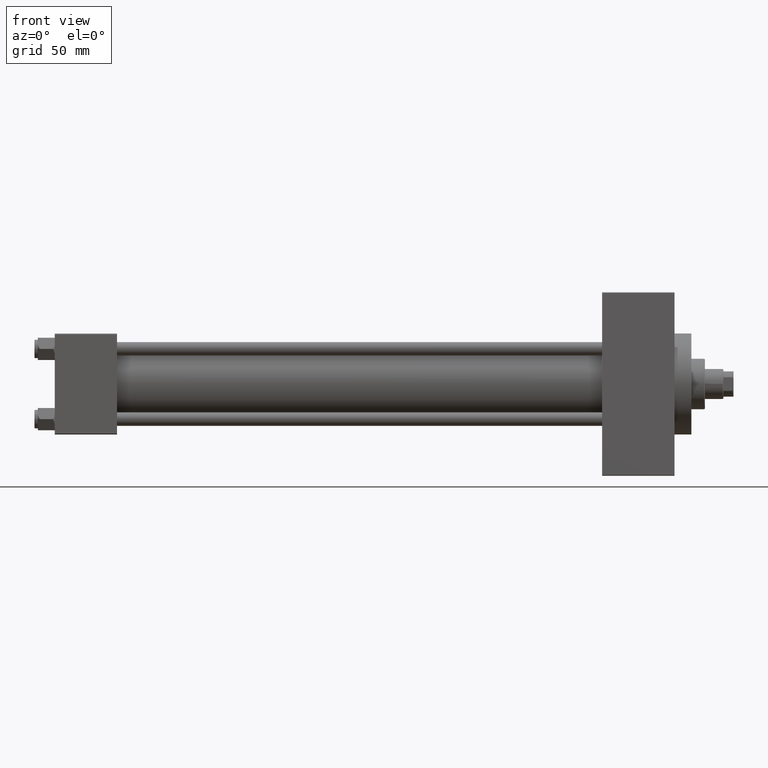
[diagram: clean part render]
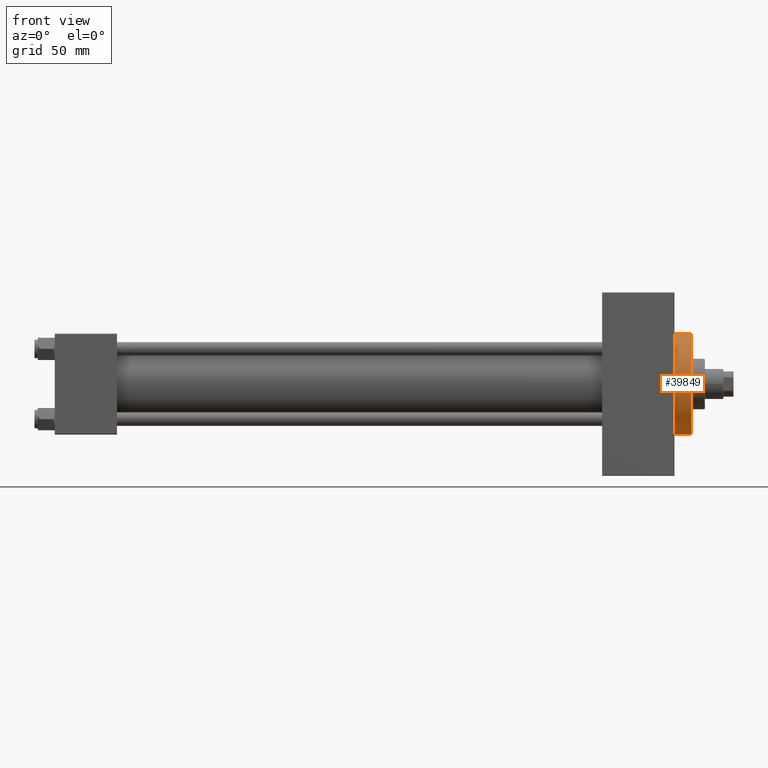
[diagram: same view with one face highlighted and labeled with its STEP entity id]
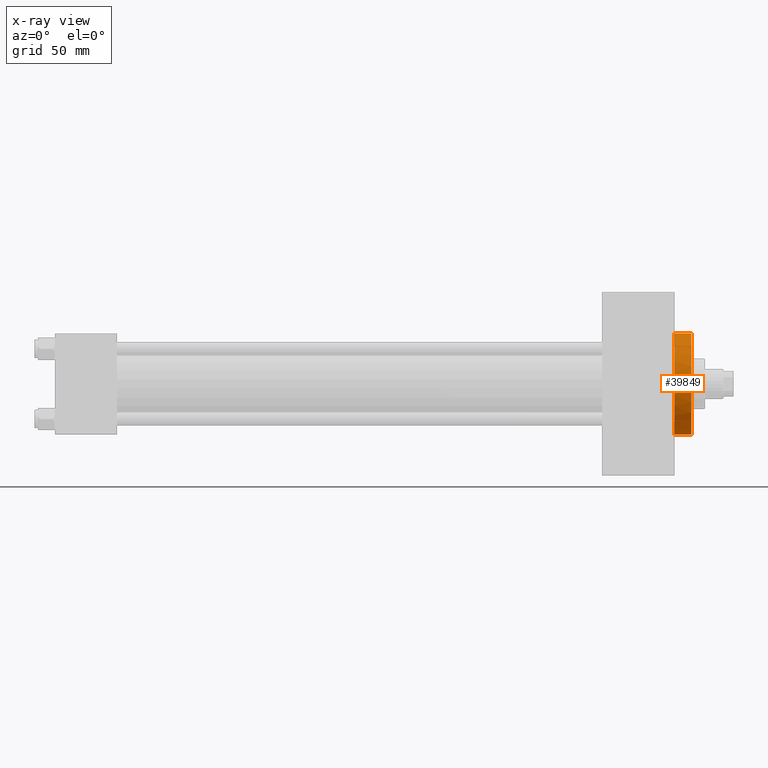
[diagram: x-ray of the same camera — body ghosted, the highlighted face saturated]
A machine part, front view. The second image highlights one B-rep face of the part: STEP entity #39849.
The next image is the same camera in x-ray: the body ghosted, the highlighted face saturated — about 0% of this face is hidden behind the body in this view.
In plain terms, the highlighted cylindrical surface (partial cylindrical patch) has radius 30 mm, axis along (-1, -0, -0).
Its self-contained STEP definition (entity closure, byte-faithful):
#3126 = VECTOR ( 'NONE', #16346, 1000.000000000000000 ) ;
#3351 = DIRECTION ( 'NONE',  ( 0.000000000000000000, 0.000000000000000000, 1.000000000000000000 ) ) ;
#4210 = LINE ( 'NONE', #4706, #16405 ) ;
#4529 = EDGE_CURVE ( 'NONE', #22680, #46960, #45691, .T. ) ;
#4706 = CARTESIAN_POINT ( 'NONE',  ( 377.9999999999999432, 0.000000000000000000, 30.00000000000000000 ) ) ;
#6415 = DIRECTION ( 'NONE',  ( 1.000000000000000000, 0.000000000000000000, 0.000000000000000000 ) ) ;
#8427 = ORIENTED_EDGE ( 'NONE', *, *, #4529, .T. ) ;
#8991 = CARTESIAN_POINT ( 'NONE',  ( 367.9999999999999432, -30.00000000000000000, 0.000000000000000000 ) ) ;
#9469 = EDGE_CURVE ( 'NONE', #14057, #22680, #42938, .T. ) ;
#9896 = CARTESIAN_POINT ( 'NONE',  ( 377.9999999999999432, 3.673940397442059178E-15, -30.00000000000000000 ) ) ;
#11820 = CARTESIAN_POINT ( 'NONE',  ( 377.9999999999999432, 0.000000000000000000, 0.000000000000000000 ) ) ;
#12334 = AXIS2_PLACEMENT_3D ( 'NONE', #11820, #45722, #3351 ) ;
#13155 = CIRCLE ( 'NONE', #39441, 30.00000000000000000 ) ;
#14057 = VERTEX_POINT ( 'NONE', #30042 ) ;
#14604 = CARTESIAN_POINT ( 'NONE',  ( 377.9999999999999432, 0.000000000000000000, 30.00000000000000000 ) ) ;
#15063 = AXIS2_PLACEMENT_3D ( 'NONE', #15347, #34325, #19348 ) ;
#15347 = CARTESIAN_POINT ( 'NONE',  ( 367.9999999999999432, 0.000000000000000000, 0.000000000000000000 ) ) ;
#16346 = DIRECTION ( 'NONE',  ( -1.000000000000000000, -0.000000000000000000, -0.000000000000000000 ) ) ;
#16405 = VECTOR ( 'NONE', #20144, 1000.000000000000000 ) ;
#18264 = CARTESIAN_POINT ( 'NONE',  ( 367.9999999999999432, 3.673940397442059178E-15, -30.00000000000000000 ) ) ;
#19348 = DIRECTION ( 'NONE',  ( 0.000000000000000000, 0.000000000000000000, -1.000000000000000000 ) ) ;
#20144 = DIRECTION ( 'NONE',  ( -1.000000000000000000, -0.000000000000000000, -0.000000000000000000 ) ) ;
#20516 = ORIENTED_EDGE ( 'NONE', *, *, #32044, .F. ) ;
#22680 = VERTEX_POINT ( 'NONE', #8991 ) ;
#24186 = AXIS2_PLACEMENT_3D ( 'NONE', #28510, #39973, #39488 ) ;
#28065 = CARTESIAN_POINT ( 'NONE',  ( 377.9999999999999432, 3.673940397442059178E-15, -30.00000000000000000 ) ) ;
#28510 = CARTESIAN_POINT ( 'NONE',  ( 367.9999999999999432, 0.000000000000000000, 0.000000000000000000 ) ) ;
#30042 = CARTESIAN_POINT ( 'NONE',  ( 367.9999999999999432, 0.000000000000000000, 30.00000000000000000 ) ) ;
#30423 = VERTEX_POINT ( 'NONE', #9896 ) ;
#31036 = EDGE_LOOP ( 'NONE', ( #20516, #39741, #32322, #38030, #8427 ) ) ;
#32044 = EDGE_CURVE ( 'NONE', #30423, #46960, #33417, .T. ) ;
#32322 = ORIENTED_EDGE ( 'NONE', *, *, #43023, .T. ) ;
#33417 = LINE ( 'NONE', #28065, #3126 ) ;
#34325 = DIRECTION ( 'NONE',  ( 1.000000000000000000, 0.000000000000000000, 0.000000000000000000 ) ) ;
#35052 = VERTEX_POINT ( 'NONE', #14604 ) ;
#38030 = ORIENTED_EDGE ( 'NONE', *, *, #9469, .T. ) ;
#39441 = AXIS2_PLACEMENT_3D ( 'NONE', #40570, #6415, #48293 ) ;
#39488 = DIRECTION ( 'NONE',  ( 0.000000000000000000, 0.000000000000000000, -1.000000000000000000 ) ) ;
#39741 = ORIENTED_EDGE ( 'NONE', *, *, #40422, .F. ) ;
#39849 = ADVANCED_FACE ( 'NONE', ( #45969 ), #42463, .T. ) ;
#39973 = DIRECTION ( 'NONE',  ( 1.000000000000000000, 0.000000000000000000, 0.000000000000000000 ) ) ;
#40422 = EDGE_CURVE ( 'NONE', #35052, #30423, #13155, .T. ) ;
#40570 = CARTESIAN_POINT ( 'NONE',  ( 377.9999999999999432, 0.000000000000000000, 0.000000000000000000 ) ) ;
#42463 = CYLINDRICAL_SURFACE ( 'NONE', #12334, 30.00000000000000000 ) ;
#42938 = CIRCLE ( 'NONE', #15063, 30.00000000000000000 ) ;
#43023 = EDGE_CURVE ( 'NONE', #35052, #14057, #4210, .T. ) ;
#45691 = CIRCLE ( 'NONE', #24186, 30.00000000000000000 ) ;
#45722 = DIRECTION ( 'NONE',  ( -1.000000000000000000, -0.000000000000000000, -0.000000000000000000 ) ) ;
#45969 = FACE_OUTER_BOUND ( 'NONE', #31036, .T. ) ;
#46960 = VERTEX_POINT ( 'NONE', #18264 ) ;
#48293 = DIRECTION ( 'NONE',  ( 0.000000000000000000, 0.000000000000000000, -1.000000000000000000 ) ) ;